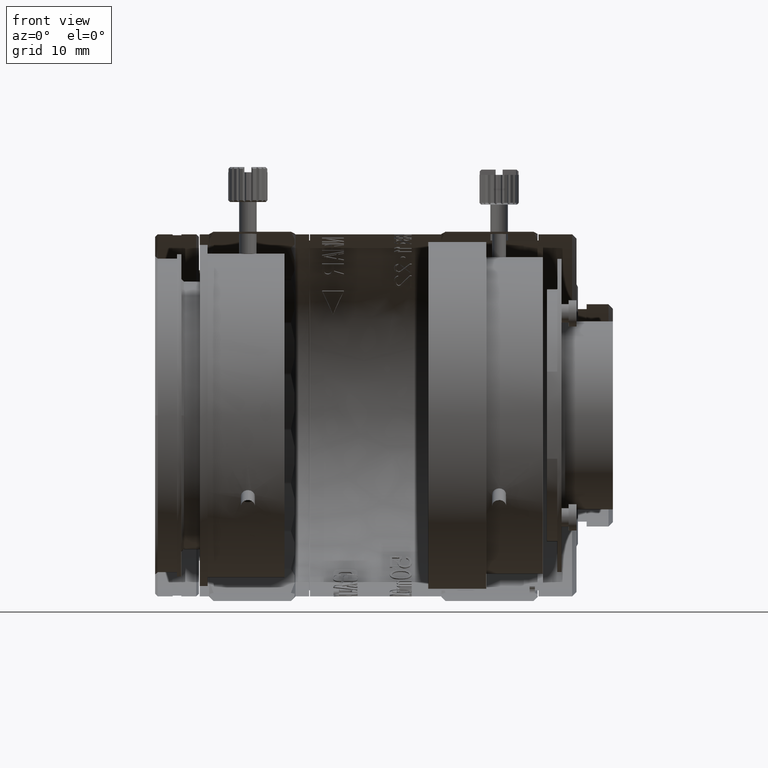
[diagram: clean part render]
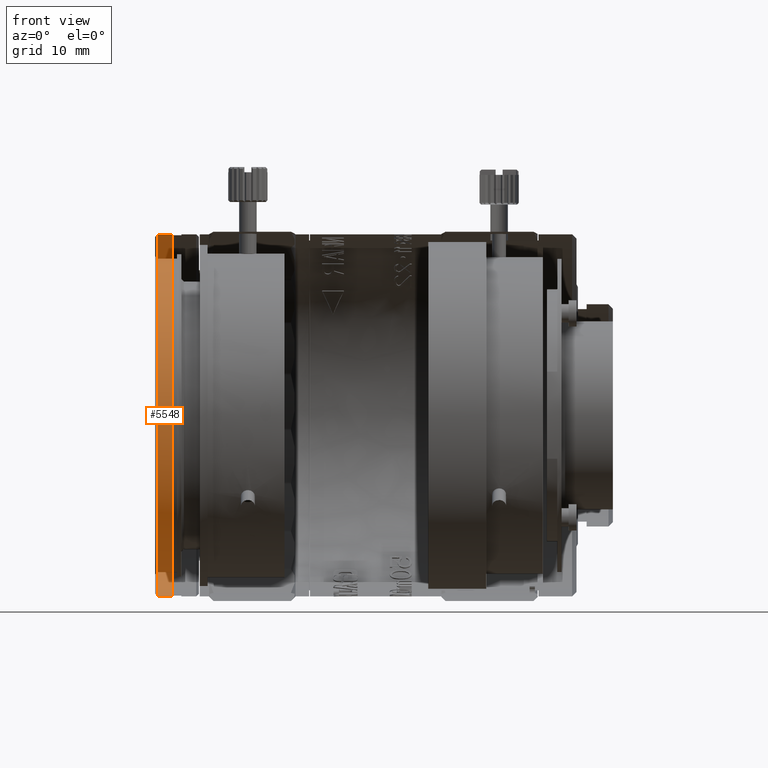
[diagram: same view with one face highlighted and labeled with its STEP entity id]
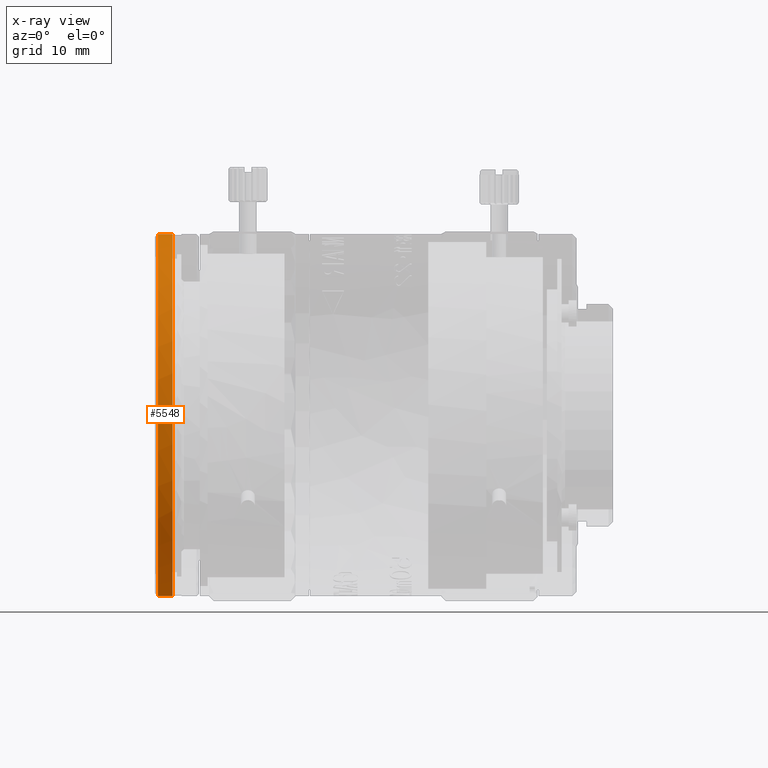
[diagram: x-ray of the same camera — body ghosted, the highlighted face saturated]
A machine part, front view. The second image highlights one B-rep face of the part: STEP entity #5548.
The next image is the same camera in x-ray: the body ghosted, the highlighted face saturated — about 0% of this face is hidden behind the body in this view.
In plain terms, the highlighted face is a freeform B-spline surface patch.
Its self-contained STEP definition (entity closure, byte-faithful):
#2597 = CARTESIAN_POINT ( 'NONE',  ( -50.32900092299999528, -41.39999999150870735, 20.69999998301743460 ) ) ;
#2759 = VERTEX_POINT ( 'NONE', #23450 ) ;
#2956 = CARTESIAN_POINT ( 'NONE',  ( -50.32900092299999528, -5.070037748858296063E-15, -20.69999999999999929 ) ) ;
#5405 = CARTESIAN_POINT ( 'NONE',  ( -50.32900092299999528, -5.660854627023139616E-09, 20.69999999657759915 ) ) ;
#5548 = ADVANCED_FACE ( 'NONE', ( #14951 ), #63636, .T. ) ;
#5603 = CARTESIAN_POINT ( 'NONE',  ( -50.32900092299999528, -1.239145943885419864E-09, -20.69999999657759915 ) ) ;
#6827 = CARTESIAN_POINT ( 'NONE',  ( -50.32900092300000239, -12.71957673861594706, 16.55464401101284722 ) ) ;
#7180 = CARTESIAN_POINT ( 'NONE',  ( -50.32900092300000949, -2.711802109843205688, -20.69999998973280597 ) ) ;
#8226 = CARTESIAN_POINT ( 'NONE',  ( -50.32900092300000239, -10.42692552227046932, 18.08654461268157121 ) ) ;
#8250 = CARTESIAN_POINT ( 'NONE',  ( -50.32900092299999528, -8.491281940534709011E-09, 20.69999999999999929 ) ) ;
#11174 = ORIENTED_EDGE ( 'NONE', *, *, #63547, .F. ) ;
#14440 = CARTESIAN_POINT ( 'NONE',  ( -52.02900092299999102, -41.39999997930000575, -20.69999999256512524 ) ) ;
#14951 = FACE_OUTER_BOUND ( 'NONE', #22585, .T. ) ;
#16241 =( BOUNDED_CURVE ( )  B_SPLINE_CURVE ( 3, ( #42729, #42037, #14440, #25410 ),
 .UNSPECIFIED., .F., .F. ) 
 B_SPLINE_CURVE_WITH_KNOTS ( ( 4, 4 ),
 ( -3.141592653589795336, 0.0000000000000000000 ),
 .UNSPECIFIED. ) 
 CURVE ( )  GEOMETRIC_REPRESENTATION_ITEM ( )  RATIONAL_B_SPLINE_CURVE ( ( 1.000000000000000000, 0.3333333335299309419, 0.3333333335299309419, 1.000000000000000000 ) ) 
 REPRESENTATION_ITEM ( '' )  );
#18490 = CARTESIAN_POINT ( 'NONE',  ( -50.32900092299999528, -20.69999998973279887, 2.711802109843170605 ) ) ;
#19676 = CARTESIAN_POINT ( 'NONE',  ( -52.02900092300500035, -1.858718915828130209E-09, -20.69999999999999929 ) ) ;
#22585 = EDGE_LOOP ( 'NONE', ( #50641, #11174, #52997, #45807 ) ) ;
#23122 = CARTESIAN_POINT ( 'NONE',  ( -50.32900092299999528, -20.69999998973279887, -2.711802109843168385 ) ) ;
#23450 = CARTESIAN_POINT ( 'NONE',  ( -50.32900092299999528, -1.239145943885419864E-09, -20.69999999657759915 ) ) ;
#25410 = CARTESIAN_POINT ( 'NONE',  ( -52.02900092300500035, -1.858718915828130209E-09, -20.69999999999999929 ) ) ;
#26015 = CARTESIAN_POINT ( 'NONE',  ( -50.32900092299999528, -5.660854627023139616E-09, 20.69999999657759915 ) ) ;
#28696 = VERTEX_POINT ( 'NONE', #26015 ) ;
#29361 = EDGE_CURVE ( 'NONE', #51719, #2759, #48459, .T. ) ;
#29469 = CARTESIAN_POINT ( 'NONE',  ( -52.02900092299999812, -8.491281940534709011E-09, 20.69999999999999929 ) ) ;
#29791 = CARTESIAN_POINT ( 'NONE',  ( -50.32900092300000239, -2.711802109843076014, 20.69999998973280242 ) ) ;
#30813 = EDGE_CURVE ( 'NONE', #2759, #28696, #36444, .T. ) ;
#31135 = CARTESIAN_POINT ( 'NONE',  ( -52.02900092300500035, -8.491281940534709011E-09, 20.69999999999999929 ) ) ;
#33692 = CARTESIAN_POINT ( 'NONE',  ( -50.32900092299998107, -20.16206806511039318, -5.416168571140792309 ) ) ;
#36444 = B_SPLINE_CURVE_WITH_KNOTS ( 'NONE', 3,
 ( #56640, #7180, #61602, #55611, #46079, #66893, #45382, #33692, #23122, #18490, #55265, #44688, #40063, #6827, #8226, #60897, #29791, #39703 ),
 .UNSPECIFIED., .F., .F.,
 ( 4, 2, 2, 2, 2, 2, 2, 2, 4 ),
 ( 0.0000000000000000000, 0.3926990816987247501, 0.7853981633974495002, 1.178097245096173751, 1.570796326794898112, 1.963495408493622474, 2.356194490192347057, 2.748893571891071197, 3.141592653589795336 ),
 .UNSPECIFIED. ) ;
#39703 = CARTESIAN_POINT ( 'NONE',  ( -50.32900092299999528, -5.660854627023139616E-09, 20.69999999657759915 ) ) ;
#40063 = CARTESIAN_POINT ( 'NONE',  ( -50.32900092300000239, -16.55464401101284366, 12.71957673861594706 ) ) ;
#42037 = CARTESIAN_POINT ( 'NONE',  ( -52.02900092300000523, -41.39999998407384396, 20.69999998301745592 ) ) ;
#42729 = CARTESIAN_POINT ( 'NONE',  ( -52.02900092300500035, -8.491281940534709011E-09, 20.69999999999999929 ) ) ;
#44688 = CARTESIAN_POINT ( 'NONE',  ( -50.32900092300000239, -18.08654461268157121, 10.42692552227047464 ) ) ;
#45382 = CARTESIAN_POINT ( 'NONE',  ( -50.32900092299999528, -18.08654461268159963, -10.42692552227040004 ) ) ;
#45807 = ORIENTED_EDGE ( 'NONE', *, *, #29361, .F. ) ;
#46079 = CARTESIAN_POINT ( 'NONE',  ( -50.32900092299998818, -12.71957673861598082, -16.55464401101280814 ) ) ;
#48374 = CARTESIAN_POINT ( 'NONE',  ( -52.02900092300500035, -1.858718915828130209E-09, -20.69999999999999929 ) ) ;
#48459 = B_SPLINE_CURVE_WITH_KNOTS ( 'NONE', 1,
 ( #48374, #5603 ),
 .UNSPECIFIED., .F., .F.,
 ( 2, 2 ),
 ( -1.000000000000000000, 0.0000000000000000000 ),
 .UNSPECIFIED. ) ;
#49981 = VERTEX_POINT ( 'NONE', #31135 ) ;
#50641 = ORIENTED_EDGE ( 'NONE', *, *, #62908, .F. ) ;
#51035 = CARTESIAN_POINT ( 'NONE',  ( -52.02900092299999812, -5.070037748858296063E-15, -20.69999999999999929 ) ) ;
#51378 = CARTESIAN_POINT ( 'NONE',  ( -50.32900092299999528, -41.39999998301742323, -20.69999999999998863 ) ) ;
#51719 = VERTEX_POINT ( 'NONE', #19676 ) ;
#52432 = CARTESIAN_POINT ( 'NONE',  ( -52.02900092299999812, -41.39999998301742323, -20.69999999999998863 ) ) ;
#52997 = ORIENTED_EDGE ( 'NONE', *, *, #30813, .F. ) ;
#54539 = CARTESIAN_POINT ( 'NONE',  ( -52.02900092300500035, -8.491281940534709011E-09, 20.69999999999999929 ) ) ;
#55265 = CARTESIAN_POINT ( 'NONE',  ( -50.32900092300002370, -20.16206806511044292, 5.416168571140728361 ) ) ;
#55611 = CARTESIAN_POINT ( 'NONE',  ( -50.32900092300000239, -10.42692552227041425, -18.08654461268159608 ) ) ;
#56640 = CARTESIAN_POINT ( 'NONE',  ( -50.32900092299999528, -1.239145943885419864E-09, -20.69999999657759915 ) ) ;
#57721 = CARTESIAN_POINT ( 'NONE',  ( -52.02900092299999812, -41.39999999150870735, 20.69999998301743460 ) ) ;
#60897 = CARTESIAN_POINT ( 'NONE',  ( -50.32900092300000949, -5.416168571140738131, 20.16206806511043226 ) ) ;
#61602 = CARTESIAN_POINT ( 'NONE',  ( -50.32900092299999528, -5.416168571140794086, -20.16206806511040384 ) ) ;
#62908 = EDGE_CURVE ( 'NONE', #49981, #51719, #16241, .T. ) ;
#63547 = EDGE_CURVE ( 'NONE', #28696, #49981, #65900, .T. ) ;
#63636 =( BOUNDED_SURFACE ( )  B_SPLINE_SURFACE ( 1, 3, ( 
 ( #29469, #57721, #52432, #51035 ),
 ( #8250, #2597, #51378, #2956 ) ),
 .UNSPECIFIED., .F., .F., .F. ) 
 B_SPLINE_SURFACE_WITH_KNOTS ( ( 2, 2 ),
 ( 4, 4 ),
 ( 0.0000000000000000000, 1.000000000000000000 ),
 ( 0.0000000000000000000, 1.000000000000000000 ),
 .UNSPECIFIED. ) 
 GEOMETRIC_REPRESENTATION_ITEM ( )  RATIONAL_B_SPLINE_SURFACE ( (
 ( 1.000000000000000000, 0.3333333334700690487, 0.3333333334700690487, 1.000000000000000000),
 ( 1.000000000000000000, 0.3333333334700690487, 0.3333333334700690487, 1.000000000000000000) ) ) 
 REPRESENTATION_ITEM ( '' )  SURFACE ( )  );
#65900 = B_SPLINE_CURVE_WITH_KNOTS ( 'NONE', 1,
 ( #5405, #54539 ),
 .UNSPECIFIED., .F., .F.,
 ( 2, 2 ),
 ( -1.000000000000000000, 0.0000000000000000000 ),
 .UNSPECIFIED. ) ;
#66893 = CARTESIAN_POINT ( 'NONE',  ( -50.32900092299998107, -16.55464401101281524, -12.71957673861598792 ) ) ;